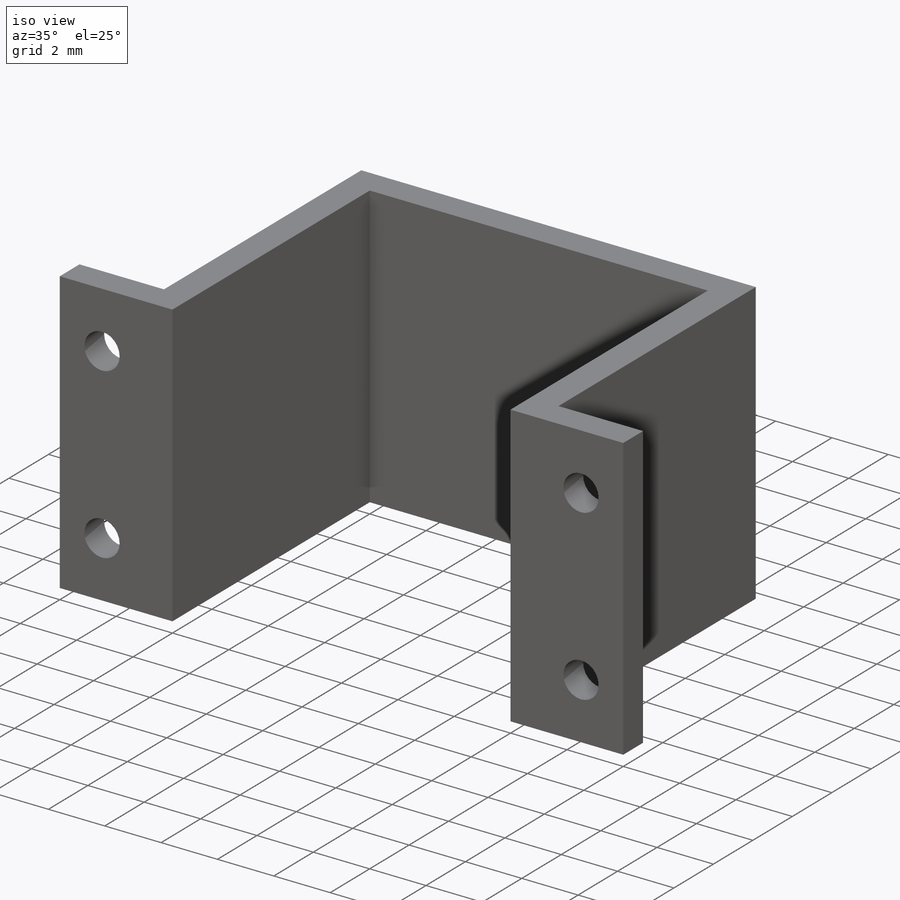
[diagram: iso view]
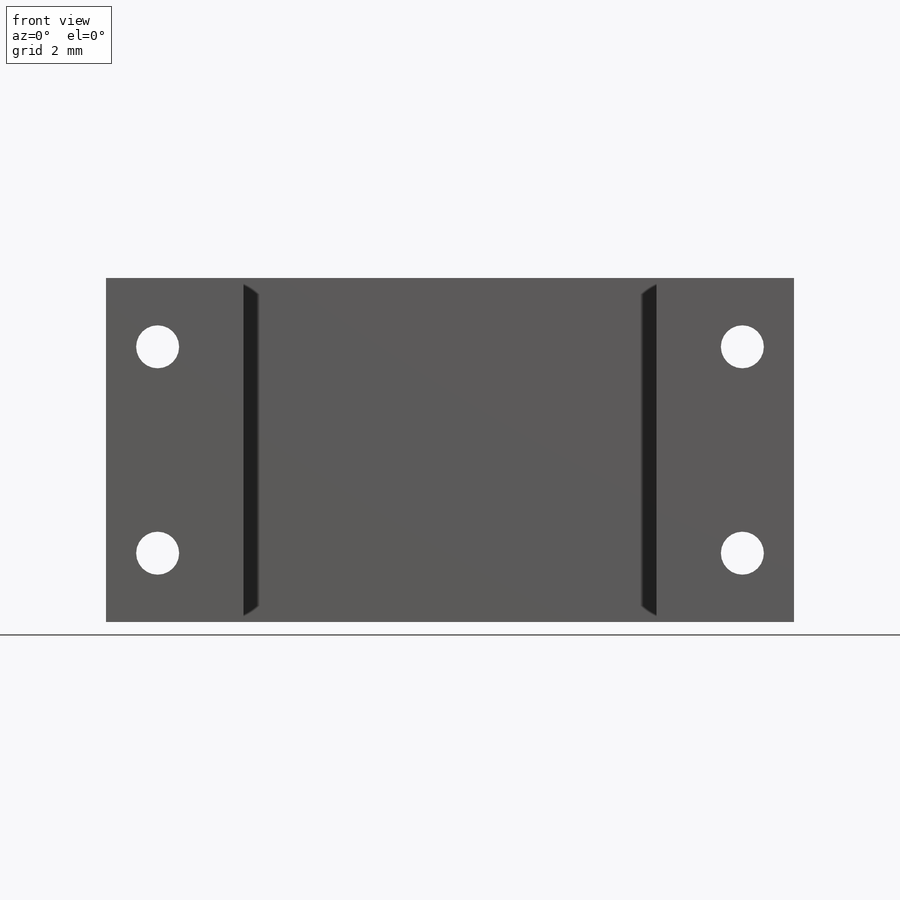
[diagram: front view]
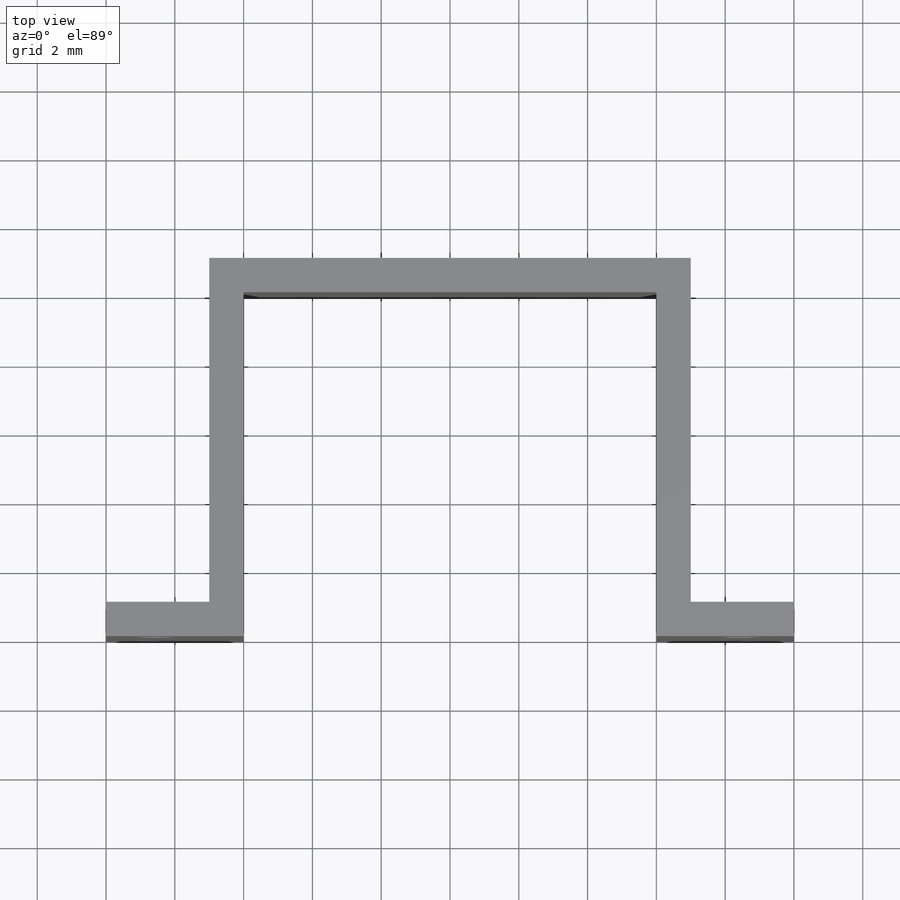
[diagram: top view]
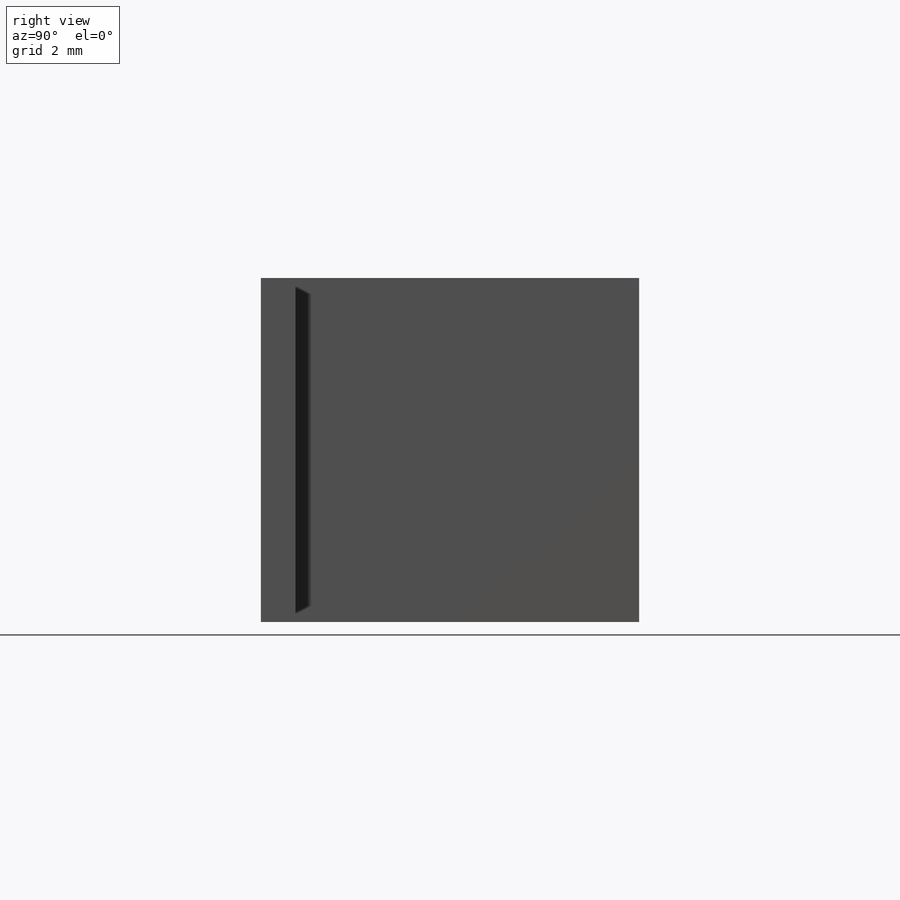
[diagram: right view]
SOLIDWORKS PART (.sldprt)
format: sldprt  version: not decoded by parser v0  size: 232,960 bytes
history: native  units: mm
features: thread x4, plane x3, sketch x3, material x1, extrude x1, hole x1 (+8 scaffold rows collapsed)
feature tree (21):
  scaffold x8  (default folders/planes/origin — collapsed)
  material  "6061 合金"
  plane  "前视基准面"
  plane  "上视基准面"
  plane  "右视基准面"
  sketch  "草图2"  dims[D1=1.0mm D2=3.0mm D3=1.0mm D4=6.0mm D5=1.0mm D6=10.0mm]
  extrude  "凸台-拉伸1"  Depth=10mm
  hole  "M1.6 螺纹孔1"  [1 undecoded]
  sketch  "草图4"  dims[D1=2.0mm D2=1.5mm D3=17.0mm D4=6.0mm]
  sketch  "草图3"  dims[hole-wizard template sketch: 46 standard entries collapsed; hole parameters kept: c15.螺纹孔钻头直径=1.25mm c15.螺纹孔钻头深度=4.95mm c15.D3=~14.816244mm c15.导头角度=118.0deg]
  thread  "孔螺蚊线1"  Diameter=2mm  [1 undecoded]
  thread  "孔螺蚊线2"  Diameter=2mm  [1 undecoded]
  thread  "孔螺蚊线3"  Diameter=2mm  [1 undecoded]
  thread  "孔螺蚊线4"  Diameter=2mm  [1 undecoded]
decode coverage: 8 of 9 modeling features carry decoded parameters
note: ~ marks probable driven/reference dimensions
note: 5 parameter values undecoded
note: suppression state not decoded; provenance and decode notes live in map.json
